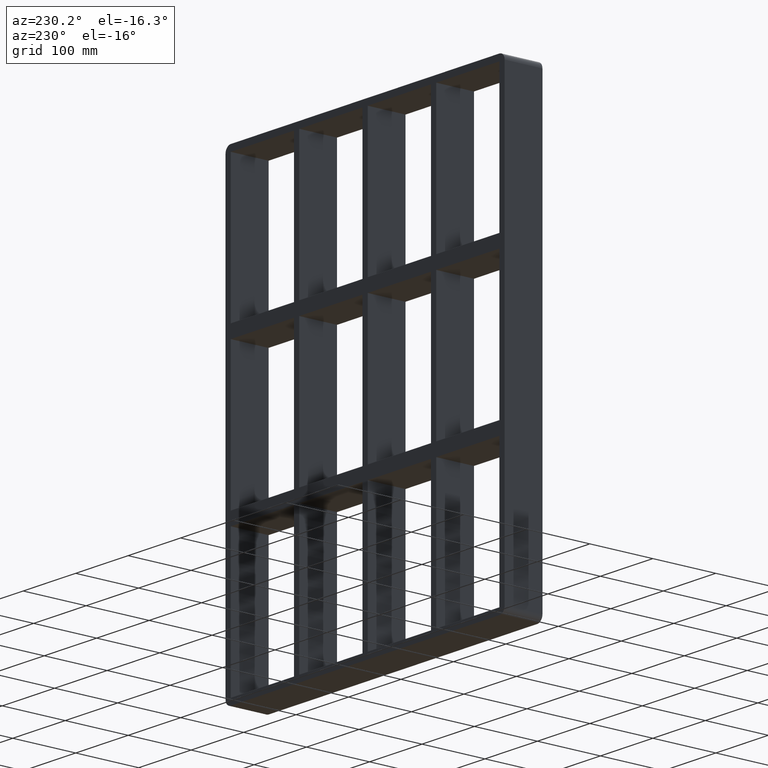
[diagram: clean part render]
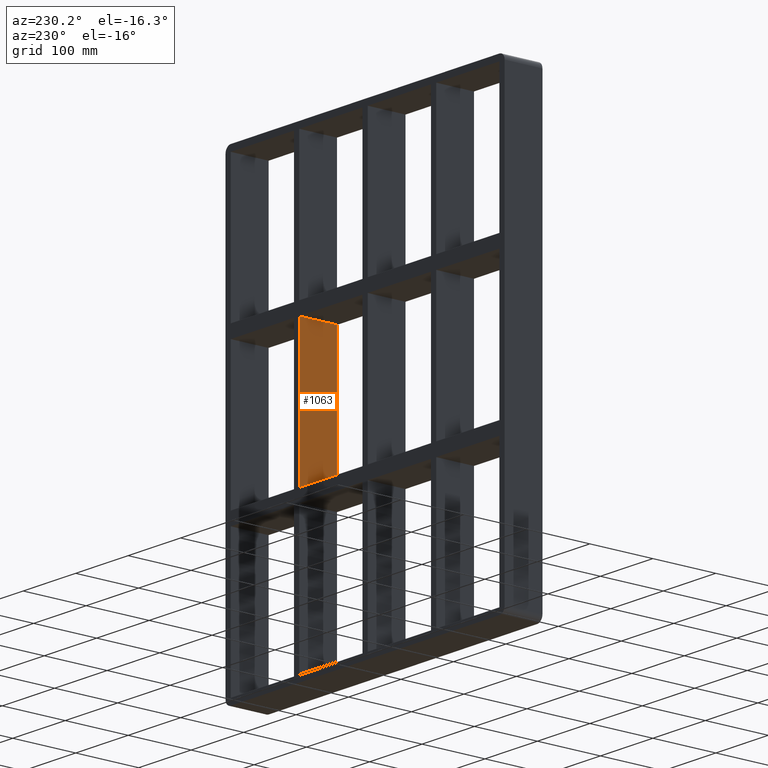
[diagram: same view with one face highlighted and labeled with its STEP entity id]
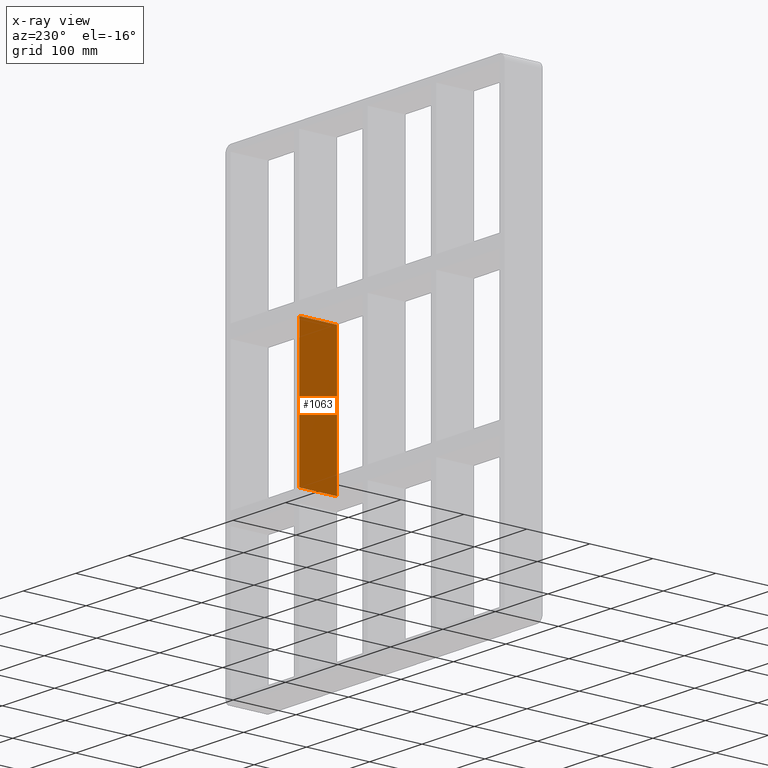
[diagram: x-ray of the same camera — body ghosted, the highlighted face saturated]
A machine part, auxiliary view. The second image highlights one B-rep face of the part: STEP entity #1063.
The next image is the same camera in x-ray: the body ghosted, the highlighted face saturated — about 1% of this face is hidden behind the body in this view.
In plain terms, the highlighted planar face has unit normal (-1, 0, 0).
Its self-contained STEP definition (entity closure, byte-faithful):
#193=CARTESIAN_POINT('',(125.49999999999864,-3.0,108.99999999999068));
#194=VERTEX_POINT('',#193);
#195=CARTESIAN_POINT('',(125.49999999999864,57.0,108.99999999999068));
#196=VERTEX_POINT('',#195);
#197=CARTESIAN_POINT('',(125.49999999999866,-3.0,108.99999999999068));
#198=DIRECTION('',(0.0,1.0,0.0));
#199=VECTOR('',#198,60.0);
#200=LINE('',#197,#199);
#201=EDGE_CURVE('',#194,#196,#200,.T.);
#851=CARTESIAN_POINT('',(125.49999999999868,57.0,-109.00000000000006));
#852=VERTEX_POINT('',#851);
#859=CARTESIAN_POINT('',(125.49999999999866,57.0,-109.00000000000006));
#860=DIRECTION('',(0.0,0.0,1.0));
#861=VECTOR('',#860,217.99999999999073);
#862=LINE('',#859,#861);
#863=EDGE_CURVE('',#852,#196,#862,.T.);
#1040=CARTESIAN_POINT('',(125.49999999999869,-3.0,-346.99999999999994));
#1041=DIRECTION('',(-1.0,0.0,0.0));
#1042=DIRECTION('',(0.0,0.0,1.0));
#1043=AXIS2_PLACEMENT_3D('',#1040,#1041,#1042);
#1044=PLANE('',#1043);
#1045=ORIENTED_EDGE('',*,*,#201,.T.);
#1046=ORIENTED_EDGE('',*,*,#863,.F.);
#1047=CARTESIAN_POINT('',(125.49999999999868,-3.0,-109.00000000000006));
#1048=VERTEX_POINT('',#1047);
#1049=CARTESIAN_POINT('',(125.49999999999866,-3.0,-109.00000000000006));
#1050=DIRECTION('',(0.0,1.0,0.0));
#1051=VECTOR('',#1050,60.0);
#1052=LINE('',#1049,#1051);
#1053=EDGE_CURVE('',#1048,#852,#1052,.T.);
#1054=ORIENTED_EDGE('',*,*,#1053,.F.);
#1055=CARTESIAN_POINT('',(125.49999999999866,-3.0,-109.00000000000006));
#1056=DIRECTION('',(0.0,0.0,1.0));
#1057=VECTOR('',#1056,217.99999999999073);
#1058=LINE('',#1055,#1057);
#1059=EDGE_CURVE('',#1048,#194,#1058,.T.);
#1060=ORIENTED_EDGE('',*,*,#1059,.T.);
#1061=EDGE_LOOP('',(#1045,#1046,#1054,#1060));
#1062=FACE_OUTER_BOUND('',#1061,.T.);
#1063=ADVANCED_FACE('',(#1062),#1044,.T.);